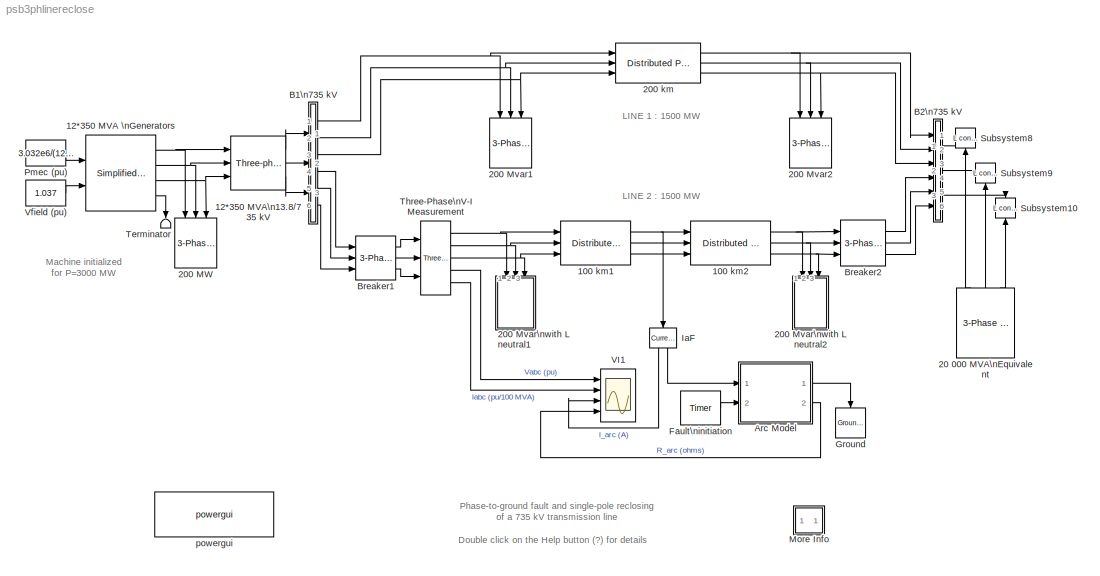
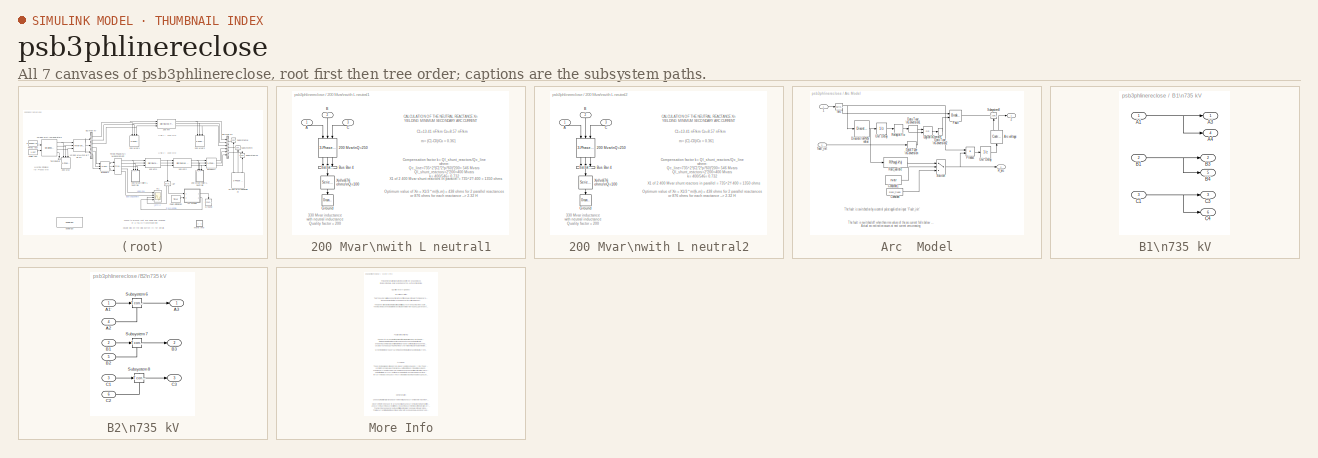
[diagram: thumbnail index - all 7 canvases of the model, root first then tree order]
MODEL psb3phlinereclose
KIND model
CONFIG InitFcn = powericon('psbinitsys',bdroot);
BLOCK [Reference]  Breaker1  REF=powerlib2/Elements/3-Phase Breaker
  Cp = inf
  Ports = [3, 3]
  Ron = 0.001
  Rp = 1e5
  SourceBlock = powerlib2/Elements/3-Phase Breaker
  SourceType = Three-Phase Breaker
  Ts = 50e-6
  comext = off
  init_states = closed
  mesure = None
  sa = on
  sb = off
  sc = off
  sw_times = [4/60  34/60]
BLOCK [Reference]  Breaker2  REF=powerlib2/Elements/3-Phase Breaker
  Cp = inf
  Ports = [3, 3]
  Ron = 0.001
  Rp = 1e5
  SourceBlock = powerlib2/Elements/3-Phase Breaker
  SourceType = Three-Phase Breaker
  Ts = 50e-6
  comext = off
  init_states = closed
  mesure = None
  sa = on
  sb = off
  sc = off
  sw_times = [4/60  34/60]
BLOCK [Reference] 100  km1  REF=powerlib2/Elements/Distributed Parameters Line
  PSBOutputType = 111111111111111111111111111111
  Ports = [3, 3]
  SourceBlock = powerlib2/Elements/Distributed Parameters Line
  SourceType = Distributed Parameters Line
  Tag = PoWeRsYsTeMbLoCk
  c = [13.41e-9  8.57e-9]
  f = 60
  l = [0.8679e-3  3.008e-3]
  lgt = 100
  mesure = None
  n = 3
  r = [0.01165 0.2676]
  x1 = [0 -2.416e-007 4.728e+005 -5.555e+005;0.0001015 -2.421e-007 4.937e+005 -5.37e+005;0.0002031 -2.424e-007 5.139e+005 -5.177e+005;0.0003046 -2.422e-007 5.333e+005 -4.977e+005;0.0004062 -2.417e-007 5.52e+005 -4.769e+005;0.0005077 -2.408e-007 5.699e+005 -4.554e+005]
  x2 = [0 -1.471e-007 4.261e+005 -5.969e+005;0.0001015 -1.474e-007 4.486e+005 -5.801e+005;0.0002031 -1.474e-007 4.705e+005 -5.625e+005;0.0003046 -1.472e-007 4.917e+005 -5.441e+005;0.0004062 -1.468e-007 5.122e+005 -5.249e+005;0.0005077 -1.462e-007 5.319e+005 -5.049e+005]
  x3 = [0 -2.944e-010 398.8 -914.4;0.0001015 -2.663e-010 433.5 -898.5;0.0002031 -2.378e-010 467.6 -881.2;0.0003046 -2.089e-010 501 -862.7;0.0004062 -1.797e-010 533.6 -842.9;0.0005077 -1.503e-010 565.5 -821.9]
  x4 = [0 -3.362e-010 2831 -3827;0.0001015 -3.679e-010 2976 -3716;0.0002031 -3.99e-010 3116 -3599;0.0003046 -4.295e-010 3251 -3477;0.0004062 -4.594e-010 3382 -3350;0.0005077 -4.886e-010 3508 -3218]
  x5 = 0.0005077
BLOCK [Reference] 100  km2  REF=powerlib2/Elements/Distributed Parameters Line
  PSBOutputType = 111111111111111111111111111111
  Ports = [3, 3]
  SourceBlock = powerlib2/Elements/Distributed Parameters Line
  SourceType = Distributed Parameters Line
  Tag = PoWeRsYsTeMbLoCk
  c = [13.41e-9  8.57e-9]
  f = 60
  l = [0.8679e-3  3.008e-3]
  lgt = 100
  mesure = None
  n = 3
  r = [0.01165 0.2676]
  x1 = [0 -1.471e-007 4.261e+005 -5.969e+005;0.0001015 -1.474e-007 4.486e+005 -5.801e+005;0.0002031 -1.474e-007 4.705e+005 -5.625e+005;0.0003046 -1.472e-007 4.917e+005 -5.441e+005;0.0004062 -1.468e-007 5.122e+005 -5.249e+005;0.0005077 -1.462e-007 5.319e+005 -5.049e+005]
  x2 = [0 -4.673e-008 3.727e+005 -6.281e+005;0.0001015 -4.666e-008 3.965e+005 -6.134e+005;0.0002031 -4.652e-008 4.197e+005 -5.978e+005;0.0003046 -4.631e-008 4.422e+005 -5.813e+005;0.0004062 -4.604e-008 4.642e+005 -5.639e+005;0.0005077 -4.569e-008 4.854e+005 -5.457e+005]
  x3 = [0 -1.263e-010 506.9 -849.4;0.0001015 -9.531e-011 539.1 -829.3;0.0002031 -6.416e-011 570.4 -808.1;0.0003046 -3.291e-011 600.9 -785.7;0.0004062 -1.62e-012 630.6 -762.1;0.0005077 2.968e-011 659.3 -737.4]
  x4 = [0 -1.89e-010 2313 -4151;0.0001015 -2.214e-010 2470 -4059;0.0002031 -2.535e-010 2624 -3962;0.0003046 -2.852e-010 2773 -3859;0.0004062 -3.164e-010 2919 -3750;0.0005077 -3.472e-010 3060 -3635]
  x5 = 0.0005077
BLOCK [Reference] 12*350 MVA \nGenerators  REF=powerlib2/Machines/Simplified Synchronous \nMachine  pu Units
  LoadFlowParameters = [1 3000000000 0 0 0]
  PSBOutputType = 1110
  Ports = [2, 4]
  SourceBlock = powerlib2/Machines/Simplified Synchronous \nMachine  pu Units
  SourceType = Simplified Synchronous Machine
  Tag = PoWeRsYsTeMbLoCk
  conType = 3-wire Y
  iounits = 0
  x1 = [ 12*350e6,13.8e3,60 ]
  x2 = [ inf,0,2 ]
  x3 = [ 0.22/15, 0.22 ]
  x4 = [0 2.57573 0.717405 0.717405 0.717405 -11.4304 -131.43 108.57]
BLOCK [Reference] 12*350 MVA\n13.8//735 kV  REF=powerlib2/Elements/Three-phase\nTransformer\n(Two Windings)
  PSBOutputType = 111
  Ports = [3, 3]
  SourceBlock = powerlib2/Elements/Three-phase\nTransformer\n(Two Windings)
  SourceType = Three-Phase Transformer (Two Windings)
  Tag = PoWeRsYsTeMbLoCk
  hyst = off
  initialslopes = [+1 +1 +1]
  lm = 500
  matfile = 'hysteresis'
  mesure = None
  nominal = [ 12*350e6 , 60 ]
  params1 = [ 13.8e3 , 0.002 , 0.08 ]
  params2 = [ 735e3 , 0.002 , 0.08 ]
  phi0 = [ 0.8 , -0.8 , 0.7 ]
  rmag = 500
  sat = [ 0,0 ; 0.0024,1.2 ; 1.0,1.52 ]
  sif = off
  type1 = Delta (D1)
  type2 = Yg
  ynsat = off
BLOCK [Reference] 20 000 MVA\nEquivalent  REF=powerlib2/Electrical\nSources/3-Phase Source
  F = 60
  InternalConnection = Yg
  L = 735^2/20000/377
  PSBOutputType = 111
  Phi = 0
  Ports = [0, 3]
  Psc = 20000e6
  R = 735^2/20000/10
  RLoff = on
  SourceBlock = powerlib2/Electrical\nSources/3-Phase Source
  SourceType = 3-Phase Source
  Tag = PoWeRsYsTeMbLoCk
  V = 735e3
  Vbase = 735e3
  XRratio = 10
BLOCK [Reference] 200  km  REF=powerlib2/Elements/Distributed Parameters Line
  PSBOutputType = 111111111111111111111111111111
  Ports = [3, 3]
  SourceBlock = powerlib2/Elements/Distributed Parameters Line
  SourceType = Distributed Parameters Line
  Tag = PoWeRsYsTeMbLoCk
  c = [13.41e-9  8.57e-9]
  f = 60
  l = [0.8679e-3  3.008e-3]
  lgt = 200
  mesure = None
  n = 3
  r = [0.01165 0.2676]
  x1 = [0 -2.332e-007 3.976e+005 -6.116e+005;0.0002031 -2.374e-007 4.433e+005 -5.794e+005;0.0004062 -2.403e-007 4.863e+005 -5.438e+005;0.0006093 -2.417e-007 5.264e+005 -5.05e+005;0.0008124 -2.417e-007 5.635e+005 -4.632e+005;0.001015 -2.403e-007 5.973e+005 -4.188e+005]
  x2 = [0 -4.613e-008 2.891e+005 -6.707e+005;0.0002031 -4.657e-008 3.395e+005 -6.466e+005;0.0004062 -4.675e-008 3.88e+005 -6.188e+005;0.0006093 -4.665e-008 4.342e+005 -5.873e+005;0.0008124 -4.628e-008 4.779e+005 -5.524e+005;0.001015 -4.563e-008 5.187e+005 -5.142e+005]
  x3 = [0 -4.038e-010 276 -953;0.0002031 -3.531e-010 348.1 -929.1;0.0004062 -3.004e-010 418.1 -899.7;0.0006093 -2.46e-010 485.7 -865.1;0.0008124 -1.901e-010 550.5 -825.4;0.001015 -1.331e-010 612 -780.9]
  x4 = [0 -1.229e-011 1756 -4400;0.0002031 -7.699e-011 2087 -4253;0.0004062 -1.412e-010 2407 -4081;0.0006093 -2.046e-010 2712 -3885;0.0008124 -2.669e-010 3001 -3666;0.001015 -3.275e-010 3273 -3426]
  x5 = 0.001015
BLOCK [Reference] 200 MW  REF=powerlib2/Elements/3-Phase\nSeries RLC Load
  P3 = 200e6
  Ports = [3]
  QC3 = 0
  QL3 = 0
  SourceBlock = powerlib2/Elements/3-Phase\nSeries RLC Load
  SourceType = 3-phase series RLC load
  Vpp = 13.8e3
  fn = 60
BLOCK [Reference] 200 Mvar1  REF=powerlib2/Elements/3-Phase\nSeries RLC Load
  P3 = 200e6/250
  Ports = [3]
  QC3 = 0
  QL3 = 200e6
  SourceBlock = powerlib2/Elements/3-Phase\nSeries RLC Load
  SourceType = 3-phase series RLC load
  Vpp = 735e3
  fn = 60
BLOCK [Reference] 200 Mvar2  REF=powerlib2/Elements/3-Phase\nSeries RLC Load
  P3 = 200e6/250
  Ports = [3]
  QC3 = 0
  QL3 = 200e6
  SourceBlock = powerlib2/Elements/3-Phase\nSeries RLC Load
  SourceType = 3-phase series RLC load
  Vpp = 735e3
  fn = 60
BLOCK [SubSystem] 200 Mvar\nwith L neutral1
  MaskIconFrame = on
  MaskIconOpaque = on
  MaskIconRotate = none
  MaskIconUnits = autoscale
  MinAlgLoopOccurrences = off
  Ports = [3]
  RTWSystemCode = Auto
  TreatAsAtomicUnit = off
BLOCK [Reference] 200 Mvar\nwith L neutral1/200 Mvar\nQ=250  REF=powerlib2/Elements/3-Phase\nSeries RLC Branch 
  C = inf
  L = 735^2/200/377
  Ports = [3, 3]
  R = 735^2/200/250
  SourceBlock = powerlib2/Elements/3-Phase\nSeries RLC Branch
  SourceType = 3-phase RLC series element
BLOCK [Inport] 200 Mvar\nwith L neutral1/A
  IconDisplay = Port number
  LatchInput = off
  Port = 1
BLOCK [Inport] 200 Mvar\nwith L neutral1/B
  IconDisplay = Port number
  LatchInput = off
  Port = 2
BLOCK [Reference] 200 Mvar\nwith L neutral1/Bus Bar 4  REF=powerlib2/Connectors/Bus Bar (thin horiz)
  PSBOutputType = 111111111111111111111111111111111111111111111111111111111111111111111111111111111111
  Ports = [3, 1]
  SourceBlock = powerlib2/Connectors/Bus Bar (thin horiz)
  SourceType = Bus Bar
  Tag = PoWeRsYsTeMbLoCk
  input = 3
  output = 1
BLOCK [Inport] 200 Mvar\nwith L neutral1/C
  IconDisplay = Port number
  LatchInput = off
  Port = 3
BLOCK [Reference] 200 Mvar\nwith L neutral1/Ground  REF=powerlib2/Connectors/Ground (input)
  Ports = [1]
  SourceBlock = powerlib2/Connectors/Ground (input)
  SourceType = Ground
  Tag = PoWeRsYsTeMbLoCk
BLOCK [Reference] 200 Mvar\nwith L neutral1/Xnl\n876 ohms\nQ=100  REF=powerlib2/Elements/Series RLC Branch
  PSBOutputType = 1
  Ports = [1, 1]
  SourceBlock = powerlib2/Elements/Series RLC Branch
  SourceType = Series RLC Branch
  Tag = PoWeRsYsTeMbLoCk
  a = 876/100
  b = 876/377
  c = inf
  mesure = None
BLOCK [SubSystem] 200 Mvar\nwith L neutral2
  MaskIconFrame = on
  MaskIconOpaque = on
  MaskIconRotate = none
  MaskIconUnits = autoscale
  MinAlgLoopOccurrences = off
  Ports = [3]
  RTWSystemCode = Auto
  TreatAsAtomicUnit = off
BLOCK [Reference] 200 Mvar\nwith L neutral2/200 Mvar\nQ=250  REF=powerlib2/Elements/3-Phase\nSeries RLC Branch 
  C = inf
  L = 735^2/200/377
  Ports = [3, 3]
  R = 735^2/200/250
  SourceBlock = powerlib2/Elements/3-Phase\nSeries RLC Branch
  SourceType = 3-phase RLC series element
BLOCK [Inport] 200 Mvar\nwith L neutral2/A
  IconDisplay = Port number
  LatchInput = off
  Port = 1
BLOCK [Inport] 200 Mvar\nwith L neutral2/B
  IconDisplay = Port number
  LatchInput = off
  Port = 2
BLOCK [Reference] 200 Mvar\nwith L neutral2/Bus Bar 4  REF=powerlib2/Connectors/Bus Bar (thin horiz)
  PSBOutputType = 111111111111111111111111111111111111111111111111111111111111111111111111111111111111
  Ports = [3, 1]
  SourceBlock = powerlib2/Connectors/Bus Bar (thin horiz)
  SourceType = Bus Bar
  Tag = PoWeRsYsTeMbLoCk
  input = 3
  output = 1
BLOCK [Inport] 200 Mvar\nwith L neutral2/C
  IconDisplay = Port number
  LatchInput = off
  Port = 3
BLOCK [Reference] 200 Mvar\nwith L neutral2/Ground  REF=powerlib2/Connectors/Ground (input)
  Ports = [1]
  SourceBlock = powerlib2/Connectors/Ground (input)
  SourceType = Ground
  Tag = PoWeRsYsTeMbLoCk
BLOCK [Reference] 200 Mvar\nwith L neutral2/Xnl\n876 ohms\nQ=100  REF=powerlib2/Elements/Series RLC Branch
  PSBOutputType = 1
  Ports = [1, 1]
  SourceBlock = powerlib2/Elements/Series RLC Branch
  SourceType = Series RLC Branch
  Tag = PoWeRsYsTeMbLoCk
  a = 876/100
  b = 876/377
  c = inf
  mesure = None
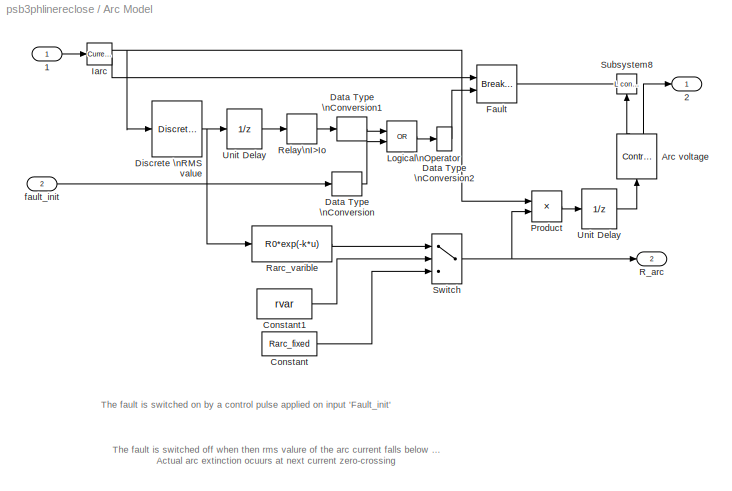
BLOCK [SubSystem] Arc  Model
  MaskCallbackString = ||||
  MaskDescription = This block implements a variable or fixed arc resistance model.\n \nInput 1, output 1:  Connection terminals of the arc \n                             resistance.\nInput 2 :    Control signal for the fault initiation\nUse a short pulse of 1 cycle. Once fault current starts flowing, it is sustained by the arc ionized path.\nOutput 2:  Arc resitance \n\nIf you check the 'Variable arc resistance' box...<+385ch>
  MaskEnableString = on,on,on,on,on
  MaskIconFrame = on
  MaskIconOpaque = on
  MaskIconRotate = none
  MaskIconUnits = autoscale
  MaskInitialization = if strcmp(Rarc_var,'on'), rvar=1; else, rvar=0; end\nR0=Rparam(1);\nk=Rparam(2);
  MaskPromptString = Variable arc resistance :|Arc resistance for fixed arc resistance :|Arc parameters for variable arc resistance [Ro k] : :|Current threshold for arc extinction Io (A rms) :|Sample time (s) :
  MaskStyleString = checkbox,edit,edit,edit,edit
  MaskTabNameString = ,,,,
  MaskToolTipString = on,on,on,on,on
  MaskTunableValueString = on,on,on,on,on
  MaskType = Arc model
  MaskValueString = on|0.1|[56.54 0.006375]|50|50e-6
  MaskVarAliasString = ,,,,
  MaskVariables = Rarc_var=&1;Rarc_fixed=@2;Rparam=@3;I0=@4;Ts=@5;
  MaskVisibilityString = on,on,on,on,on
  MinAlgLoopOccurrences = off
  Ports = [2, 2]
  RTWSystemCode = Auto
  TreatAsAtomicUnit = off
BLOCK [Inport] Arc  Model/1
  IconDisplay = Port number
  LatchInput = off
  Port = 1
BLOCK [Outport] Arc  Model/2
  BusOutputAsStruct = off
  IconDisplay = Port number
BLOCK [Reference] Arc  Model/Arc voltage  REF=powerlib2/Electrical\nSources/Controlled Voltage Source
  Description = source block
  PSBOutputType = 11
  Ports = [1, 2]
  SourceBlock = powerlib2/Electrical\nSources/Controlled Voltage Source
  SourceType = Controlled Voltage Source
  Tag = PoWeRsYsTeMbLoCk
  ifreq = 0
  initsrc = on
  iph = 0
  iv = 0
  mesure = None
  srctyp = AC
BLOCK [Constant] Arc  Model/Constant
  Value = Rarc_fixed
BLOCK [Constant] Arc  Model/Constant1
  Value = rvar
BLOCK [DataTypeConversion] Arc  Model/Data Type \nConversion
  OutDataTypeMode = boolean
BLOCK [DataTypeConversion] Arc  Model/Data Type \nConversion1
  OutDataTypeMode = boolean
BLOCK [DataTypeConversion] Arc  Model/Data Type \nConversion2
  OutDataTypeMode = double
BLOCK [Reference] Arc  Model/Discrete \nRMS value  REF=powerlib_extras/Discrete\nMeasurements/Discrete \nRMS value
  Freq = 60
  Mag_Init = 0
  Ports = [1, 1]
  SourceBlock = powerlib_extras/Discrete\nMeasurements/Discrete \nRMS value
  SourceType = Discrete RMS value
  Ts = Ts
BLOCK [Reference] Arc  Model/Fault  REF=powerlib2/Elements/Breaker
  PSBOutputType = 1
  Ports = [2, 1]
  SourceBlock = powerlib2/Elements/Breaker
  SourceType = Breaker
  Tag = PoWeRsYsTeMbLoCk
  Ts = 0
  a = .001
  c = 0
  comext = on
  cs = 0
  mesure = None
  rs = inf
  times = [ 4/60  5/60 ]
BLOCK [Reference] Arc  Model/Iarc  REF=powerlib2/Measurements/Current Measurement
  OutputType = Magnitude
  PSBOutputType = 01
  PSBequivalent = 0
  PhasorSimulation = off
  Ports = [1, 2]
  SourceBlock = powerlib2/Measurements/Current Measurement
  SourceType = Current Measurement
  Tag = PoWeRsYsTeMmEaSuReMeNt
BLOCK [Logic] Arc  Model/Logical\nOperator
  Operator = OR
  Ports = [2, 1]
BLOCK [Product] Arc  Model/Product
  Ports = [2, 1]
  RndMeth = Floor
BLOCK [Outport] Arc  Model/R_arc
  BusOutputAsStruct = off
  IconDisplay = Port number
  Port = 2
BLOCK [Fcn] Arc  Model/Rarc_varible
  Expr = R0*exp(-k*u)
BLOCK [Relay] Arc  Model/Relay\nI>Io
  OffSwitchValue = I0
  OnSwitchValue = I0*1.2
  ZeroCross = off
BLOCK [Reference] Arc  Model/Subsystem8  REF=powerlib2/Connectors/L connector
  Ports = [1, 0, 1]
  SourceBlock = powerlib2/Connectors/L connector
  SourceType = Bus Bar
  Tag = PoWeRsYsTeMbLoCk
BLOCK [Switch] Arc  Model/Switch
  SaturateOnIntegerOverflow = off
  Threshold = 0.5
  ZeroCross = off
BLOCK [UnitDelay] Arc  Model/Unit Delay
  SampleTime = Ts
BLOCK [UnitDelay] Arc  Model/Unit Delay 
  SampleTime = Ts
BLOCK [Inport] Arc  Model/fault_init
  IconDisplay = Port number
  LatchInput = off
  Port = 2
BLOCK [SubSystem] B1\n735 kV
  MaskDisplay = disp('')
  MaskIconFrame = on
  MaskIconOpaque = on
  MaskIconRotate = none
  MaskIconUnits = autoscale
  MinAlgLoopOccurrences = off
  Ports = [3, 6]
  RTWSystemCode = Auto
  TreatAsAtomicUnit = off
BLOCK [Inport] B1\n735 kV/A1
  IconDisplay = Port number
  LatchInput = off
  Port = 1
BLOCK [Outport] B1\n735 kV/A3
  BusOutputAsStruct = off
  IconDisplay = Port number
  InitialOutput = 0
BLOCK [Outport] B1\n735 kV/A4
  BusOutputAsStruct = off
  IconDisplay = Port number
  InitialOutput = 0
  Port = 4
BLOCK [Inport] B1\n735 kV/B1
  IconDisplay = Port number
  LatchInput = off
  Port = 2
BLOCK [Outport] B1\n735 kV/B3
  BusOutputAsStruct = off
  IconDisplay = Port number
  InitialOutput = 0
  Port = 2
BLOCK [Outport] B1\n735 kV/B4
  BusOutputAsStruct = off
  IconDisplay = Port number
  InitialOutput = 0
  Port = 5
BLOCK [Inport] B1\n735 kV/C1
  IconDisplay = Port number
  LatchInput = off
  Port = 3
BLOCK [Outport] B1\n735 kV/C3
  BusOutputAsStruct = off
  IconDisplay = Port number
  InitialOutput = 0
  Port = 3
BLOCK [Outport] B1\n735 kV/C4
  BusOutputAsStruct = off
  IconDisplay = Port number
  InitialOutput = 0
  Port = 6
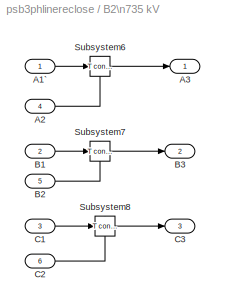
BLOCK [SubSystem] B2\n735 kV
  MaskDisplay = disp('')
  MaskIconFrame = on
  MaskIconOpaque = on
  MaskIconRotate = none
  MaskIconUnits = autoscale
  MinAlgLoopOccurrences = off
  Ports = [6, 3]
  RTWSystemCode = Auto
  TreatAsAtomicUnit = off
BLOCK [Inport] B2\n735 kV/A1`
  IconDisplay = Port number
  LatchInput = off
  Port = 1
BLOCK [Inport] B2\n735 kV/A2
  IconDisplay = Port number
  LatchInput = off
  Port = 4
BLOCK [Outport] B2\n735 kV/A3
  BusOutputAsStruct = off
  IconDisplay = Port number
  InitialOutput = 0
BLOCK [Inport] B2\n735 kV/B1
  IconDisplay = Port number
  LatchInput = off
  Port = 2
BLOCK [Inport] B2\n735 kV/B2
  IconDisplay = Port number
  LatchInput = off
  Port = 5
BLOCK [Outport] B2\n735 kV/B3
  BusOutputAsStruct = off
  IconDisplay = Port number
  InitialOutput = 0
  Port = 2
BLOCK [Inport] B2\n735 kV/C1
  IconDisplay = Port number
  LatchInput = off
  Port = 3
BLOCK [Inport] B2\n735 kV/C2
  IconDisplay = Port number
  LatchInput = off
  Port = 6
BLOCK [Outport] B2\n735 kV/C3
  BusOutputAsStruct = off
  IconDisplay = Port number
  InitialOutput = 0
  Port = 3
BLOCK [Reference] B2\n735 kV/Subsystem6  REF=powerlib2/Connectors/T connector
  PSBOutputType = 1
  Ports = [1, 1, 1]
  SourceBlock = powerlib2/Connectors/T connector
  SourceType = Bus Bar
  Tag = PoWeRsYsTeMbLoCk
BLOCK [Reference] B2\n735 kV/Subsystem7  REF=powerlib2/Connectors/T connector
  PSBOutputType = 1
  Ports = [1, 1, 1]
  SourceBlock = powerlib2/Connectors/T connector
  SourceType = Bus Bar
  Tag = PoWeRsYsTeMbLoCk
BLOCK [Reference] B2\n735 kV/Subsystem8  REF=powerlib2/Connectors/T connector
  PSBOutputType = 1
  Ports = [1, 1, 1]
  SourceBlock = powerlib2/Connectors/T connector
  SourceType = Bus Bar
  Tag = PoWeRsYsTeMbLoCk
BLOCK [Reference] Fault\ninitiation  REF=powerlib_extras/Control \nBlocks/Timer
  Ports = [0, 1]
  SourceBlock = powerlib_extras/Control \nBlocks/Timer
  SourceType = Timer
  e = [1 0  ]
  t = [ 1/60 2/60 ]
BLOCK [Reference] Ground  REF=powerlib2/Connectors/Ground (input)
  Ports = [1]
  SourceBlock = powerlib2/Connectors/Ground (input)
  SourceType = Ground
  Tag = PoWeRsYsTeMbLoCk
BLOCK [Reference] IaF  REF=powerlib2/Measurements/Current Measurement
  OutputType = Magnitude
  PSBOutputType = 01
  PSBequivalent = 0
  PhasorSimulation = off
  Ports = [1, 2]
  SourceBlock = powerlib2/Measurements/Current Measurement
  SourceType = Current Measurement
  Tag = PoWeRsYsTeMmEaSuReMeNt
BLOCK [SubSystem] More Info
  MaskDisplay = disp('?')
  MaskIconFrame = on
  MaskIconOpaque = on
  MaskIconRotate = none
  MaskIconUnits = autoscale
  MinAlgLoopOccurrences = off
  Ports = []
  RTWSystemCode = Auto
  TreatAsAtomicUnit = off
BLOCK [Constant] Pmec (pu)
  Value = 3.032e6/(12*350)
BLOCK [Reference] Subsystem10  REF=powerlib2/Connectors/L connector
  Ports = [1, 0, 1]
  SourceBlock = powerlib2/Connectors/L connector
  SourceType = Bus Bar
  Tag = PoWeRsYsTeMbLoCk
BLOCK [Reference] Subsystem8  REF=powerlib2/Connectors/L connector
  Ports = [1, 0, 1]
  SourceBlock = powerlib2/Connectors/L connector
  SourceType = Bus Bar
  Tag = PoWeRsYsTeMbLoCk
BLOCK [Reference] Subsystem9  REF=powerlib2/Connectors/L connector
  Ports = [1, 0, 1]
  SourceBlock = powerlib2/Connectors/L connector
  SourceType = Bus Bar
  Tag = PoWeRsYsTeMbLoCk
BLOCK [Terminator] Terminator
BLOCK [Reference] Three-Phase\nV-I Measurement  REF=powerlib2/Measurements/Three-Phase\nV-I Measurement
  IChoice = yes
  OutputType = Magnitude
  PSBOutputType = 11100
  PSBequivalent = 1
  Pbase = 100e6
  PhasorSimulation = off
  Ports = [3, 5]
  Ppu = on
  SourceBlock = powerlib2/Measurements/Three-Phase\nV-I Measurement
  SourceType = 3-Phase VI Measurement
  Tag = PoWeRsYsTeMmEaSuReMeNt
  VChoice = phase-to-ground
  Vbase = 735e3
  Vpu = on
  labelC = I1
  labelV = V1
  ualc = off
  ualv = off
BLOCK [Scope] VI1
  DataFormat = Array
  LimitDataPoints = off
  NumInputPorts = 4
  Ports = [4]
  TimeRange = 0.7000000000000001
  YMax = 2~100~50000~100
  YMin = -2~-100~-50000~0
  ZoomMode = yonly
BLOCK [Constant] Vfield (pu)
  Value = 1.037
BLOCK [Reference] powergui  REF=powerlib2/powergui
  DisplayStyle = off
  Frange = logspace(0,3,50)
  FreqAxis = off
  MaxFrequency = 1000
  Ports = []
  RmsSteady = 1
  SourceBlock = powerlib2/powergui
  SourceType = PSB option menu block
  StartTime = 0.0
  Ts = 50e-6
  Xlog = off
  Ylog = off
  ZoomFFT = on
  cycles = 1
  display = off
  echomessages = off
  frequency = 60
  frequencyindice = 60
  frequencyindicesteady = 1
  fundamental = 60
  methode = off
  save = off
  variable = ZData
ANNOTATION (root): Double click on the Help button (?) for details
ANNOTATION (root): LINE 1 : 1500 MW
ANNOTATION (root): LINE 2 : 1500 MW
ANNOTATION (root): Machine initialized\n for P=3000 MW
ANNOTATION (root): Phase-to-ground fault and single-pole reclosing \nof a 735 kV transmission line
ANNOTATION 200 Mvar\nwith L neutral1: 330 Mvar inductance \nwith neutral inductance\nQuality factor = 200
ANNOTATION 200 Mvar\nwith L neutral1: C1=13.41 nF/km Co=8.57 nF/km
ANNOTATION 200 Mvar\nwith L neutral1: CALCULATION OF THE NEUTRAL REACTANCE Xn\nYIELDING MINIMUM SECONDARY ARC CURRENT
ANNOTATION 200 Mvar\nwith L neutral1: Compensation factor k= Ql_shunt_reactors/Qc_line\nwhere:\n Qc_line=735^2*(C1*2*pi*60)*200= 546 Mvars\n Ql_shunt_reactors=2*200=400 Mvars\nk= 400/546= 0.732
ANNOTATION 200 Mvar\nwith L neutral1: Optimum value of Xn = X1/3 * m/(k-m) = 438 ohms for 2 parallel reactances\nor 876 ohms for each reactance --> 2.32 H
ANNOTATION 200 Mvar\nwith L neutral1: X1 of 2 400 Mvar shunt reactors in parallel = 735^2*/ 400 = 1350 ohms
ANNOTATION 200 Mvar\nwith L neutral1: m= (C1-C0)/Co = 0.361
ANNOTATION 200 Mvar\nwith L neutral2: 330 Mvar inductance \nwith neutral inductance\nQuality factor = 200
ANNOTATION 200 Mvar\nwith L neutral2: C1=13.41 nF/km Co=8.57 nF/km
ANNOTATION 200 Mvar\nwith L neutral2: CALCULATION OF THE NEUTRAL REACTANCE Xn\nYIELDING MINIMUM SECONDARY ARC CURRENT
ANNOTATION 200 Mvar\nwith L neutral2: Compensation factor k= Ql_shunt_reactors/Qc_line\nwhere:\n Qc_line=735^2*(C1*2*pi*60)*200= 546 Mvars\n Ql_shunt_reactors=2*200=400 Mvars\nk= 400/546= 0.732
ANNOTATION 200 Mvar\nwith L neutral2: Optimum value of Xn = X1/3 * m/(k-m) = 438 ohms for 2 parallel reactances\nor 876 ohms for each reactance --> 2.32 H
ANNOTATION 200 Mvar\nwith L neutral2: X1 of 2 400 Mvar shunt reactors in parallel = 735^2*/ 400 = 1350 ohms
ANNOTATION 200 Mvar\nwith L neutral2: m= (C1-C0)/Co = 0.361
ANNOTATION Arc  Model: The fault is switched off when then rms valure of the arc current falls below 50 A.\nActual arc extinction ocuurs at next current zero-crossing
ANNOTATION Arc  Model: The fault is switched on by a control pulse applied on input 'Fault_init'
ANNOTATION More Info: A phase-to-ground fault is applied at the middle of line 2. In order to apply the fault along the line, \nthis line is simulated in two sections of 100 km. As soon as the fault is detected by the protection relays (not simulated here) , \nan opening command is sent to the two line breakers of the faulted phase. The breaker are kept open during a certain 'dead time' , \nusually around 0.5 s, during...<+370ch>
ANNOTATION More Info: Arc model
ANNOTATION More Info: Choose Simulation/Start and observe the voltage and current waveforms on the 4-trace oscilloscope.\n\nObserve the three phase-to-ground voltages and currents at sending end of line 2, and the current flowing into the fault.The line voltages\nand currents are measured with the 3-phase measurement bus of the Extra library. It allows to output voltages and currents directly in pu. \nThe machine has b...<+990ch>
ANNOTATION More Info: Circuit Description
ANNOTATION More Info: Demonstration
ANNOTATION More Info: Fault and line switching
ANNOTATION More Info: G. Sybille (Hydro-Quebec)
ANNOTATION More Info: The arc is modelled by a fixed or non-linear resistance R = f(Iarc_rms). The arc extinguishes when its rms current falls below a \ncertain threshold value (typically 50 A) defined in the arc model block. Open the Arc Model block and look at the arc parameters. \nThe mean arc resistance is programmed as an exponential function of the rms current. The mean arc resistance increases when the rms arc c...<+699ch>
ANNOTATION More Info: This demonstration ilustrates the use of three-phase blocks\nto study of a single-pole reclosing on a 735-kV transmission line
ANNOTATION More Info: Two 735 kV parallel lines, 200 km long, transmit 3000 MW of power from a generation plant (12 generators of 350 MVA) to\nto an equivalent network having a short circuit level of 20 GVA.\n\nThe generation plant is simulated with a simplified synchronous machine (subtransient reactance of 0.22 pu). \nThe machine is connected to the transmission network through a 13.8 kV/ 735 kV Wye-Delta transformer...<+806ch>
LINE  Breaker1:1 -> Three-Phase\nV-I Measurement:1
LINE  Breaker1:2 -> Three-Phase\nV-I Measurement:2
LINE  Breaker1:3 -> Three-Phase\nV-I Measurement:3
LINE  Breaker2:1 -> B2\n735 kV:4
LINE  Breaker2:2 -> B2\n735 kV:5
LINE  Breaker2:3 -> B2\n735 kV:6
NET 100  km1:1 -> 100  km2:1, IaF:1
LINE 100  km1:2 -> 100  km2:2
LINE 100  km1:3 -> 100  km2:3
NET 100  km2:1 ->  Breaker2:1, 200 Mvar\nwith L neutral2:1
NET 100  km2:2 ->  Breaker2:2, 200 Mvar\nwith L neutral2:2
NET 100  km2:3 ->  Breaker2:3, 200 Mvar\nwith L neutral2:3
NET 12*350 MVA \nGenerators:1 -> 12*350 MVA\n13.8//735 kV:1, 200 MW:1
NET 12*350 MVA \nGenerators:2 -> 12*350 MVA\n13.8//735 kV:2, 200 MW:2
NET 12*350 MVA \nGenerators:3 -> 12*350 MVA\n13.8//735 kV:3, 200 MW:3
LINE 12*350 MVA \nGenerators:4 -> Terminator:1
LINE 12*350 MVA\n13.8//735 kV:1 -> B1\n735 kV:1
LINE 12*350 MVA\n13.8//735 kV:2 -> B1\n735 kV:2
LINE 12*350 MVA\n13.8//735 kV:3 -> B1\n735 kV:3
LINE 20 000 MVA\nEquivalent:1 -> Subsystem8:1
LINE 20 000 MVA\nEquivalent:2 -> Subsystem9:1
LINE 20 000 MVA\nEquivalent:3 -> Subsystem10:1
NET 200  km:1 -> 200 Mvar2:1, B2\n735 kV:1
NET 200  km:2 -> 200 Mvar2:2, B2\n735 kV:2
NET 200  km:3 -> 200 Mvar2:3, B2\n735 kV:3
LINE 200 Mvar\nwith L neutral1/200 Mvar\nQ=250:1 -> 200 Mvar\nwith L neutral1/Bus Bar 4:1
LINE 200 Mvar\nwith L neutral1/200 Mvar\nQ=250:2 -> 200 Mvar\nwith L neutral1/Bus Bar 4:2
LINE 200 Mvar\nwith L neutral1/200 Mvar\nQ=250:3 -> 200 Mvar\nwith L neutral1/Bus Bar 4:3
LINE 200 Mvar\nwith L neutral1/A:1 -> 200 Mvar\nwith L neutral1/200 Mvar\nQ=250:1
LINE 200 Mvar\nwith L neutral1/B:1 -> 200 Mvar\nwith L neutral1/200 Mvar\nQ=250:2
LINE 200 Mvar\nwith L neutral1/Bus Bar 4:1 -> 200 Mvar\nwith L neutral1/Xnl\n876 ohms\nQ=100:1
LINE 200 Mvar\nwith L neutral1/C:1 -> 200 Mvar\nwith L neutral1/200 Mvar\nQ=250:3
LINE 200 Mvar\nwith L neutral1/Xnl\n876 ohms\nQ=100:1 -> 200 Mvar\nwith L neutral1/Ground:1
LINE 200 Mvar\nwith L neutral2/200 Mvar\nQ=250:1 -> 200 Mvar\nwith L neutral2/Bus Bar 4:1
LINE 200 Mvar\nwith L neutral2/200 Mvar\nQ=250:2 -> 200 Mvar\nwith L neutral2/Bus Bar 4:2
LINE 200 Mvar\nwith L neutral2/200 Mvar\nQ=250:3 -> 200 Mvar\nwith L neutral2/Bus Bar 4:3
LINE 200 Mvar\nwith L neutral2/A:1 -> 200 Mvar\nwith L neutral2/200 Mvar\nQ=250:1
LINE 200 Mvar\nwith L neutral2/B:1 -> 200 Mvar\nwith L neutral2/200 Mvar\nQ=250:2
LINE 200 Mvar\nwith L neutral2/Bus Bar 4:1 -> 200 Mvar\nwith L neutral2/Xnl\n876 ohms\nQ=100:1
LINE 200 Mvar\nwith L neutral2/C:1 -> 200 Mvar\nwith L neutral2/200 Mvar\nQ=250:3
LINE 200 Mvar\nwith L neutral2/Xnl\n876 ohms\nQ=100:1 -> 200 Mvar\nwith L neutral2/Ground:1
LINE Arc  Model/1:1 -> Arc  Model/Iarc:1
LINE Arc  Model/Arc voltage:1 -> Arc  Model/Subsystem8:1
LINE Arc  Model/Arc voltage:2 -> Arc  Model/2:1
LINE Arc  Model/Constant1:1 -> Arc  Model/Switch:2
LINE Arc  Model/Constant:1 -> Arc  Model/Switch:3
LINE Arc  Model/Data Type \nConversion1:1 -> Arc  Model/Logical\nOperator:1
LINE Arc  Model/Data Type \nConversion2:1 -> Arc  Model/Fault:2
LINE Arc  Model/Data Type \nConversion:1 -> Arc  Model/Logical\nOperator:2
NET Arc  Model/Discrete \nRMS value:1 -> Arc  Model/Rarc_varible:1, Arc  Model/Unit Delay :1
LINE Arc  Model/Fault:1 -> Arc  Model/Subsystem8:enable
NET Arc  Model/Iarc:1 -> Arc  Model/Discrete \nRMS value:1, Arc  Model/Product:1
LINE Arc  Model/Iarc:2 -> Arc  Model/Fault:1
LINE Arc  Model/Logical\nOperator:1 -> Arc  Model/Data Type \nConversion2:1
LINE Arc  Model/Product:1 -> Arc  Model/Unit Delay:1
LINE Arc  Model/Rarc_varible:1 -> Arc  Model/Switch:1
LINE Arc  Model/Relay\nI>Io:1 -> Arc  Model/Data Type \nConversion1:1
NET Arc  Model/Switch:1 -> Arc  Model/Product:2, Arc  Model/R_arc:1
LINE Arc  Model/Unit Delay :1 -> Arc  Model/Relay\nI>Io:1
LINE Arc  Model/Unit Delay:1 -> Arc  Model/Arc voltage:1
LINE Arc  Model/fault_init:1 -> Arc  Model/Data Type \nConversion:1
LINE Arc  Model:1 -> Ground:1
LINE Arc  Model:2 -> VI1:4
NET B1\n735 kV/A1:1 -> B1\n735 kV/A3:1, B1\n735 kV/A4:1
NET B1\n735 kV/B1:1 -> B1\n735 kV/B3:1, B1\n735 kV/B4:1
NET B1\n735 kV/C1:1 -> B1\n735 kV/C3:1, B1\n735 kV/C4:1
NET B1\n735 kV:1 -> 200  km:1, 200 Mvar1:1
NET B1\n735 kV:2 -> 200  km:2, 200 Mvar1:2
NET B1\n735 kV:3 -> 200  km:3, 200 Mvar1:3
LINE B1\n735 kV:4 ->  Breaker1:1
LINE B1\n735 kV:5 ->  Breaker1:2
LINE B1\n735 kV:6 ->  Breaker1:3
LINE B2\n735 kV/A1`:1 -> B2\n735 kV/Subsystem6:1
LINE B2\n735 kV/A2:1 -> B2\n735 kV/Subsystem6:enable
LINE B2\n735 kV/B1:1 -> B2\n735 kV/Subsystem7:1
LINE B2\n735 kV/B2:1 -> B2\n735 kV/Subsystem7:enable
LINE B2\n735 kV/C1:1 -> B2\n735 kV/Subsystem8:1
LINE B2\n735 kV/C2:1 -> B2\n735 kV/Subsystem8:enable
LINE B2\n735 kV/Subsystem6:1 -> B2\n735 kV/A3:1
LINE B2\n735 kV/Subsystem7:1 -> B2\n735 kV/B3:1
LINE B2\n735 kV/Subsystem8:1 -> B2\n735 kV/C3:1
LINE B2\n735 kV:1 -> Subsystem8:enable
LINE B2\n735 kV:2 -> Subsystem9:enable
LINE B2\n735 kV:3 -> Subsystem10:enable
LINE Fault\ninitiation:1 -> Arc  Model:2
LINE IaF:1 -> VI1:3
LINE IaF:2 -> Arc  Model:1
LINE Pmec (pu):1 -> 12*350 MVA \nGenerators:1
NET Three-Phase\nV-I Measurement:1 -> 100  km1:1, 200 Mvar\nwith L neutral1:1
NET Three-Phase\nV-I Measurement:2 -> 100  km1:2, 200 Mvar\nwith L neutral1:2
NET Three-Phase\nV-I Measurement:3 -> 100  km1:3, 200 Mvar\nwith L neutral1:3
LINE Three-Phase\nV-I Measurement:4 -> VI1:1
LINE Three-Phase\nV-I Measurement:5 -> VI1:2
LINE Vfield (pu):1 -> 12*350 MVA \nGenerators:2
note: NET lines group one-source signal fan-out (src -> all destinations, sorted); 1:1 wires keep LINE
